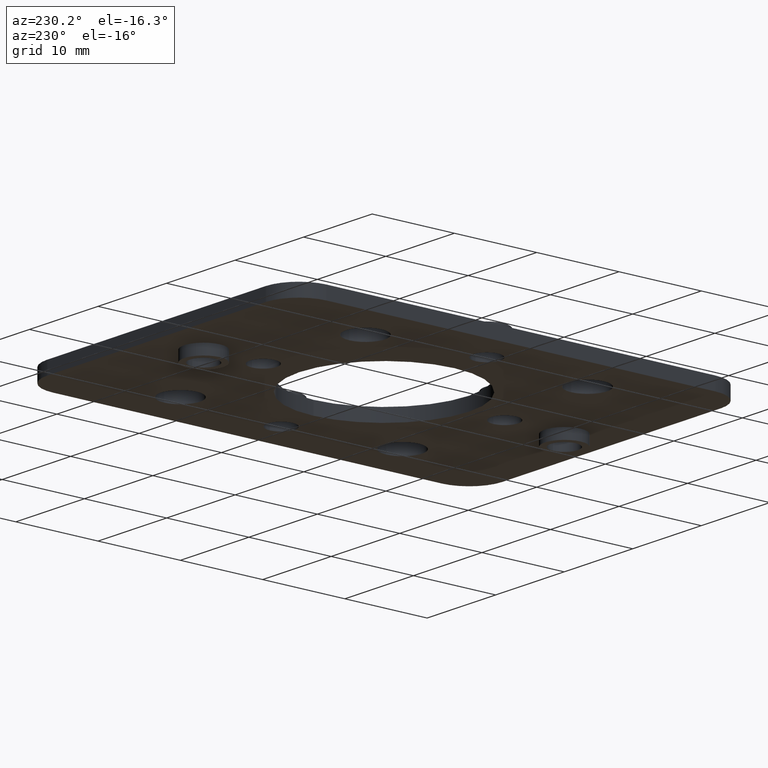
[diagram: clean part render]
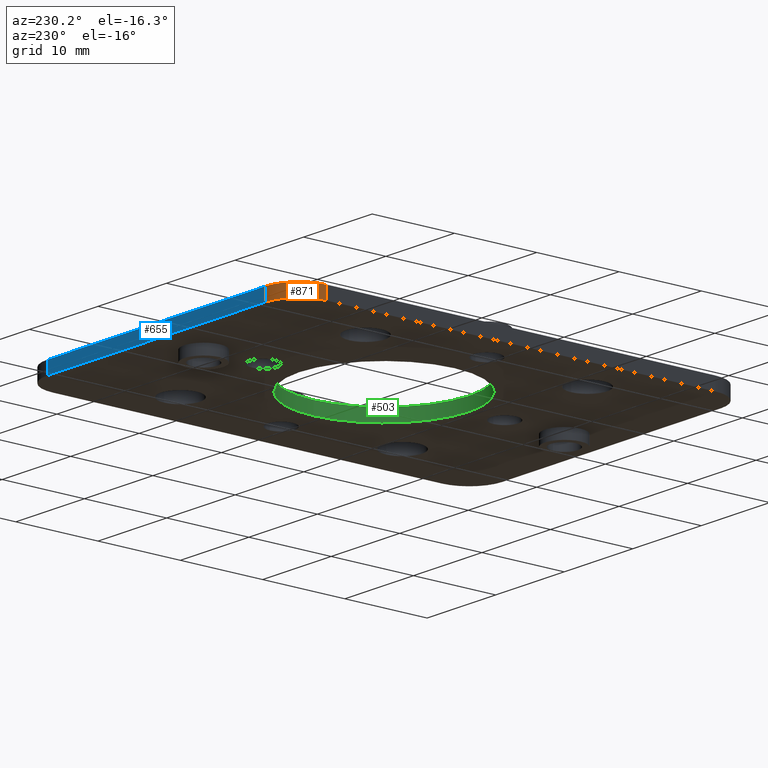
[diagram: same view with three faces highlighted in distinct colors, each labeled with its STEP entity id]
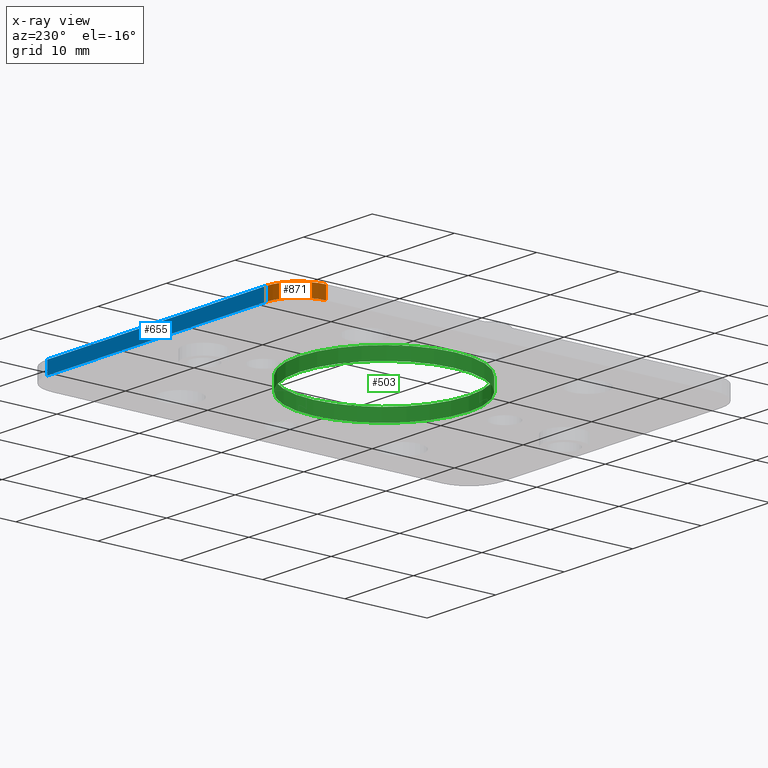
[diagram: x-ray of the same camera — body ghosted, the three highlighted faces saturated]
A machine part, auxiliary view with three faces highlighted in distinct colors.
The next image is the same camera in x-ray (body ghosted, the three faces saturated) — at least one of them is partly hidden behind the body in this view.
Their STEP definitions:

[orange] entity #871 — the highlighted cylindrical surface (partial cylindrical patch) has radius 4 mm, axis along (0, 0, 1).
#621=CARTESIAN_POINT('',(-35.183154132545631,33.914098087725847,1.550000000000000));
#622=VERTEX_POINT('',#621);
#639=CARTESIAN_POINT('',(-35.183154132545631,33.914098087725847,0.0));
#640=VERTEX_POINT('',#639);
#647=CARTESIAN_POINT('',(-35.183154132545631,33.914098087725847,0.0));
#648=DIRECTION('',(0.0,0.0,1.0));
#649=VECTOR('',#648,1.550000000000000);
#650=LINE('',#647,#649);
#651=EDGE_CURVE('',#640,#622,#650,.T.);
#822=CARTESIAN_POINT('',(-39.183154132545624,29.914098087725847,1.550000000000000));
#823=VERTEX_POINT('',#822);
#830=CARTESIAN_POINT('',(-39.183154132545624,29.914098087725847,0.0));
#831=VERTEX_POINT('',#830);
#832=CARTESIAN_POINT('',(-39.183154132545624,29.914098087725847,0.0));
#833=DIRECTION('',(0.0,0.0,1.0));
#834=VECTOR('',#833,1.550000000000000);
#835=LINE('',#832,#834);
#836=EDGE_CURVE('',#831,#823,#835,.T.);
#848=CARTESIAN_POINT('',(-35.183154132545631,29.914098087725847,0.0));
#849=DIRECTION('',(0.0,0.0,1.0));
#850=DIRECTION('',(0.0,1.0,0.0));
#851=AXIS2_PLACEMENT_3D('',#848,#849,#850);
#852=CYLINDRICAL_SURFACE('',#851,4.0);
#853=CARTESIAN_POINT('',(-35.183154132545631,29.914098087725847,1.550000000000000));
#854=DIRECTION('',(0.0,0.0,-1.0));
#855=DIRECTION('',(0.0,1.0,0.0));
#856=AXIS2_PLACEMENT_3D('',#853,#854,#855);
#857=CIRCLE('',#856,4.0);
#858=EDGE_CURVE('',#823,#622,#857,.T.);
#859=ORIENTED_EDGE('',*,*,#858,.T.);
#860=ORIENTED_EDGE('',*,*,#651,.F.);
#861=CARTESIAN_POINT('',(-35.183154132545631,29.914098087725847,0.0));
#862=DIRECTION('',(0.0,0.0,1.0));
#863=DIRECTION('',(0.0,1.0,0.0));
#864=AXIS2_PLACEMENT_3D('',#861,#862,#863);
#865=CIRCLE('',#864,4.0);
#866=EDGE_CURVE('',#640,#831,#865,.T.);
#867=ORIENTED_EDGE('',*,*,#866,.T.);
#868=ORIENTED_EDGE('',*,*,#836,.T.);
#869=EDGE_LOOP('',(#859,#860,#867,#868));
#870=FACE_OUTER_BOUND('',#869,.T.);
#871=ADVANCED_FACE('',(#870),#852,.T.);

[blue] entity #655 — the highlighted planar face has unit normal (0, 1, 0).
#616=CARTESIAN_POINT('',(-35.183154132545631,33.914098087725847,0.0));
#617=DIRECTION('',(0.0,1.0,0.0));
#618=DIRECTION('',(0.0,0.0,1.0));
#619=AXIS2_PLACEMENT_3D('',#616,#617,#618);
#620=PLANE('',#619);
#621=CARTESIAN_POINT('',(-35.183154132545631,33.914098087725847,1.550000000000000));
#622=VERTEX_POINT('',#621);
#623=CARTESIAN_POINT('',(-3.283154132545636,33.914098087725847,1.550000000000000));
#624=VERTEX_POINT('',#623);
#625=CARTESIAN_POINT('',(-35.183154132545631,33.914098087725847,1.550000000000000));
#626=DIRECTION('',(1.0,0.0,0.0));
#627=VECTOR('',#626,31.899999999999995);
#628=LINE('',#625,#627);
#629=EDGE_CURVE('',#622,#624,#628,.T.);
#630=ORIENTED_EDGE('',*,*,#629,.T.);
#631=CARTESIAN_POINT('',(-3.283154132545636,33.914098087725847,0.0));
#632=VERTEX_POINT('',#631);
#633=CARTESIAN_POINT('',(-3.283154132545636,33.914098087725847,0.0));
#634=DIRECTION('',(0.0,0.0,1.0));
#635=VECTOR('',#634,1.550000000000000);
#636=LINE('',#633,#635);
#637=EDGE_CURVE('',#632,#624,#636,.T.);
#638=ORIENTED_EDGE('',*,*,#637,.F.);
#639=CARTESIAN_POINT('',(-35.183154132545631,33.914098087725847,0.0));
#640=VERTEX_POINT('',#639);
#641=CARTESIAN_POINT('',(-3.283154132545636,33.914098087725847,0.0));
#642=DIRECTION('',(-1.0,0.0,0.0));
#643=VECTOR('',#642,31.899999999999995);
#644=LINE('',#641,#643);
#645=EDGE_CURVE('',#632,#640,#644,.T.);
#646=ORIENTED_EDGE('',*,*,#645,.T.);
#647=CARTESIAN_POINT('',(-35.183154132545631,33.914098087725847,0.0));
#648=DIRECTION('',(0.0,0.0,1.0));
#649=VECTOR('',#648,1.550000000000000);
#650=LINE('',#647,#649);
#651=EDGE_CURVE('',#640,#622,#650,.T.);
#652=ORIENTED_EDGE('',*,*,#651,.T.);
#653=EDGE_LOOP('',(#630,#638,#646,#652));
#654=FACE_OUTER_BOUND('',#653,.T.);
#655=ADVANCED_FACE('',(#654),#620,.T.);

[green] entity #503 — the highlighted cylindrical surface (bore or boss wall) has radius 10.3 mm, axis along (0, 0, -1).
#476=CARTESIAN_POINT('',(-19.233154132545625,6.264098087725847,1.550000000000000));
#477=DIRECTION('',(0.0,0.0,-1.0));
#478=DIRECTION('',(-1.0,0.0,0.0));
#479=AXIS2_PLACEMENT_3D('',#476,#477,#478);
#480=CYLINDRICAL_SURFACE('',#479,10.300000000000001);
#481=CARTESIAN_POINT('',(-8.933154132545624,6.264098087725848,0.0));
#482=VERTEX_POINT('',#481);
#483=CARTESIAN_POINT('',(-19.233154132545625,6.264098087725847,0.0));
#484=DIRECTION('',(0.0,0.0,1.0));
#485=DIRECTION('',(-1.0,0.0,0.0));
#486=AXIS2_PLACEMENT_3D('',#483,#484,#485);
#487=CIRCLE('',#486,10.300000000000001);
#488=EDGE_CURVE('',#482,#482,#487,.T.);
#489=ORIENTED_EDGE('',*,*,#488,.F.);
#490=EDGE_LOOP('',(#489));
#491=FACE_OUTER_BOUND('',#490,.T.);
#492=CARTESIAN_POINT('',(-8.933154132545624,6.264098087725848,1.550000000000000));
#493=VERTEX_POINT('',#492);
#494=CARTESIAN_POINT('',(-19.233154132545625,6.264098087725847,1.550000000000000));
#495=DIRECTION('',(0.0,0.0,-1.0));
#496=DIRECTION('',(-1.0,0.0,0.0));
#497=AXIS2_PLACEMENT_3D('',#494,#495,#496);
#498=CIRCLE('',#497,10.300000000000001);
#499=EDGE_CURVE('',#493,#493,#498,.T.);
#500=ORIENTED_EDGE('',*,*,#499,.F.);
#501=EDGE_LOOP('',(#500));
#502=FACE_BOUND('',#501,.T.);
#503=ADVANCED_FACE('',(#491,#502),#480,.F.);